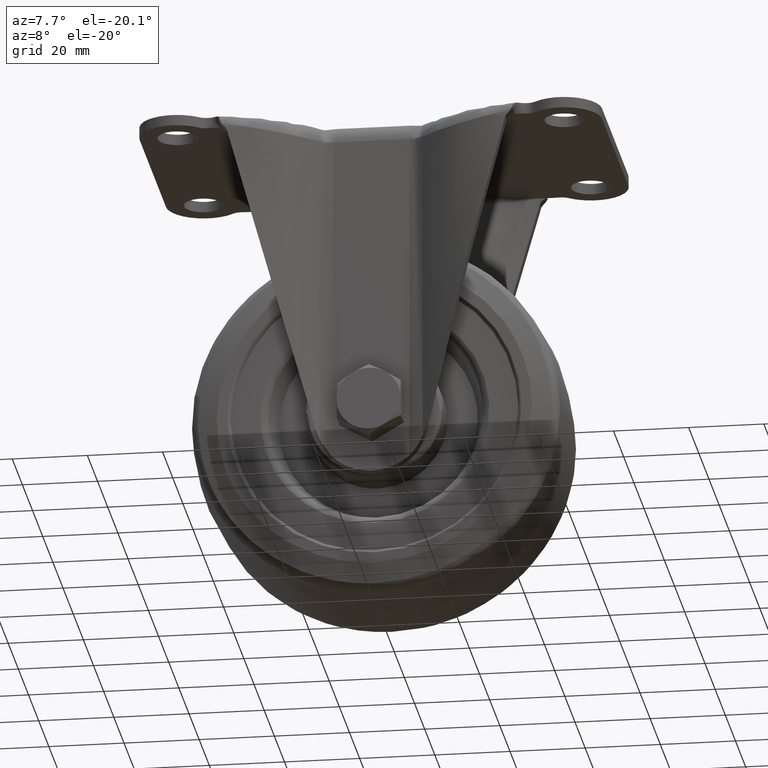
[diagram: clean part render]
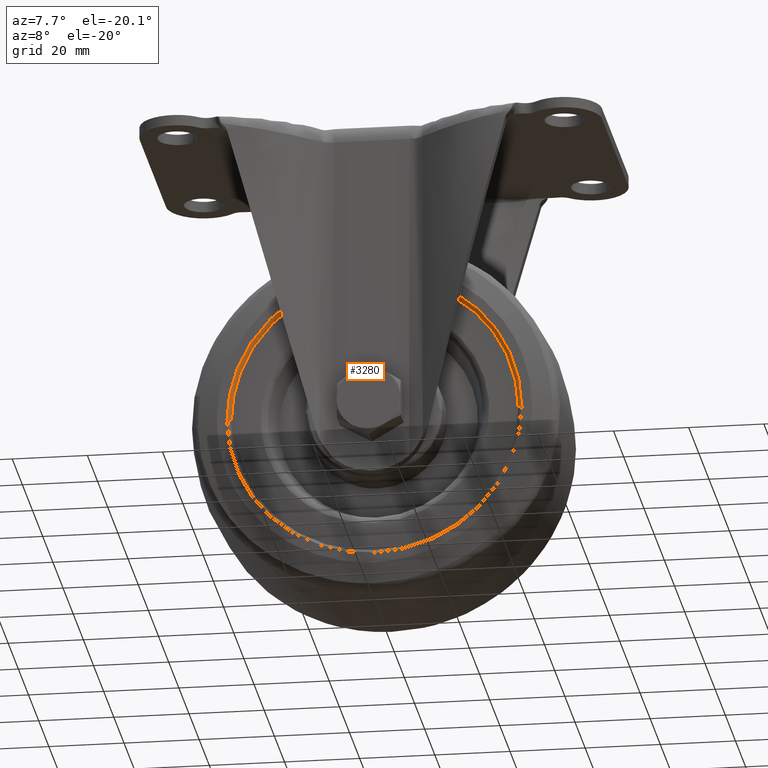
[diagram: same view with one face highlighted and labeled with its STEP entity id]
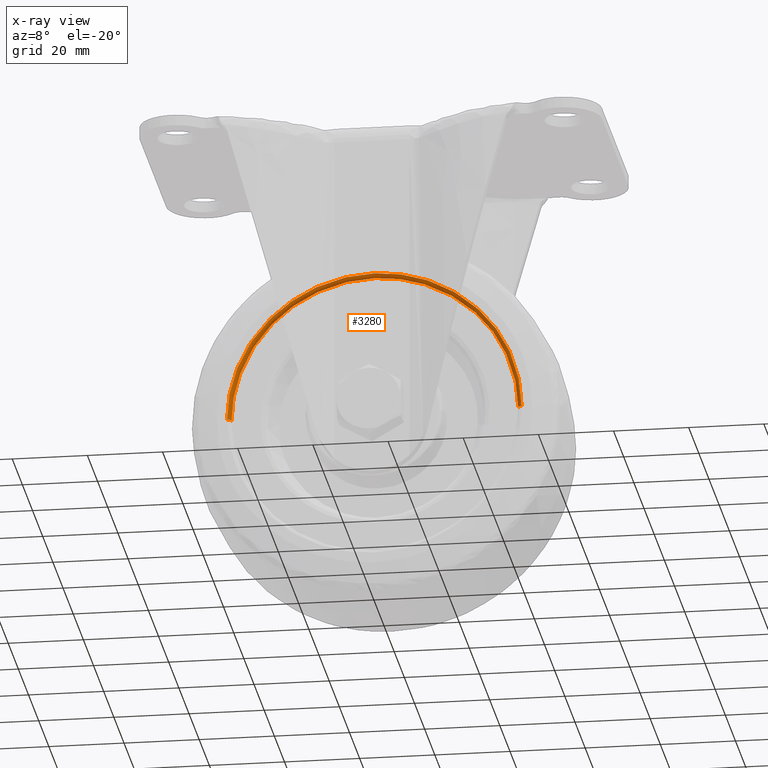
[diagram: x-ray of the same camera — body ghosted, the highlighted face saturated]
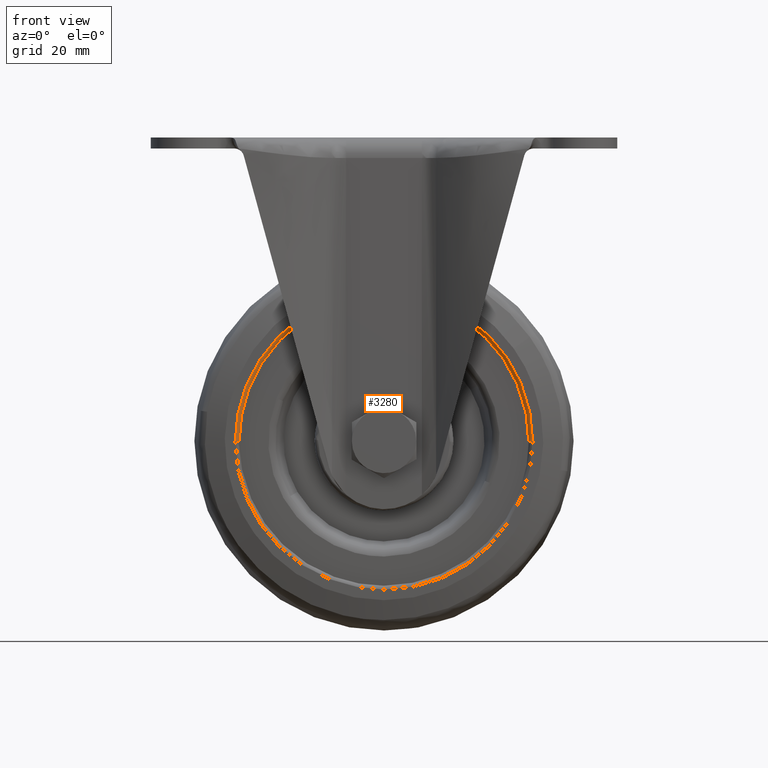
[diagram: same view with one face highlighted and labeled with its STEP entity id]
A machine part, auxiliary view. The second image highlights one B-rep face of the part: STEP entity #3280.
The next image is the same camera in x-ray: the body ghosted, the highlighted face saturated — about 0% of this face is hidden behind the body in this view.
A second angle (front view) of the same face is appended — the face is thin or edge-on in the first view.
In plain terms, the highlighted face is a freeform B-spline surface patch.
Its self-contained STEP definition (entity closure, byte-faithful):
#3126=CARTESIAN_POINT('',(0.0,-19.0,-40.825000000000003));
#3127=VERTEX_POINT('',#3126);
#3128=CARTESIAN_POINT('',(-39.174999998238967,-19.0,-80.0));
#3129=VERTEX_POINT('',#3128);
#3130=CARTESIAN_POINT('',(0.0,-19.0,-40.825000000000003));
#3131=CARTESIAN_POINT('',(-39.174999999119485,-18.999999999999996,-40.825000000000003));
#3132=CARTESIAN_POINT('',(-39.174999998238967,-19.0,-80.0));
#3140=(BOUNDED_CURVE()B_SPLINE_CURVE(2,(#3130,#3131,#3132),.UNSPECIFIED.,.F.,.U.)B_SPLINE_CURVE_WITH_KNOTS((3,3),(0.500000000000000,0.750000000000000),.UNSPECIFIED.)CURVE()GEOMETRIC_REPRESENTATION_ITEM()RATIONAL_B_SPLINE_CURVE((1.0,0.707106781186547,1.0))REPRESENTATION_ITEM(''));
#3141=EDGE_CURVE('',#3127,#3129,#3140,.T.);
#3143=CARTESIAN_POINT('',(39.174999998238967,-19.0,-80.0));
#3144=VERTEX_POINT('',#3143);
#3145=CARTESIAN_POINT('',(39.174999998238967,-19.0,-80.0));
#3146=CARTESIAN_POINT('',(39.174999999119485,-18.999999999999996,-40.825000000000003));
#3147=CARTESIAN_POINT('',(0.0,-19.0,-40.825000000000003));
#3155=(BOUNDED_CURVE()B_SPLINE_CURVE(2,(#3145,#3146,#3147),.UNSPECIFIED.,.F.,.U.)B_SPLINE_CURVE_WITH_KNOTS((3,3),(0.250000000000000,0.500000000000000),.UNSPECIFIED.)CURVE()GEOMETRIC_REPRESENTATION_ITEM()RATIONAL_B_SPLINE_CURVE((1.0,0.707106781186547,1.0))REPRESENTATION_ITEM(''));
#3156=EDGE_CURVE('',#3144,#3127,#3155,.T.);
#3189=CARTESIAN_POINT('',(39.244350631787896,-18.997592346537719,-81.097144016500238));
#3190=CARTESIAN_POINT('',(39.244350631787903,-18.997592346537719,-80.551766754286078));
#3191=CARTESIAN_POINT('',(39.244350631787903,-18.997592346537715,-40.755649368212104));
#3192=CARTESIAN_POINT('',(9.611776E-015,-18.997592346537711,-40.755649368212119));
#3193=CARTESIAN_POINT('',(-39.244350631787867,-18.997592346537715,-40.755649368212104));
#3194=CARTESIAN_POINT('',(-39.244350631787896,-18.997592346537719,-80.551766754286035));
#3195=CARTESIAN_POINT('',(-39.244350631787896,-18.997592346537719,-81.097144016500224));
#3196=CARTESIAN_POINT('',(38.097260710472241,-19.077335751784222,-81.065075124461046));
#3197=CARTESIAN_POINT('',(38.097260710472241,-19.077335751784219,-80.535638927667222));
#3198=CARTESIAN_POINT('',(38.097260710472234,-19.077335751784215,-41.902739289527766));
#3199=CARTESIAN_POINT('',(9.330830E-015,-19.077335751784222,-41.902739289527773));
#3200=CARTESIAN_POINT('',(-38.097260710472234,-19.077335751784215,-41.902739289527737));
#3201=CARTESIAN_POINT('',(-38.097260710472241,-19.077335751784219,-80.535638927667208));
#3202=CARTESIAN_POINT('',(-38.097260710472234,-19.077335751784219,-81.065075124461018));
#3203=CARTESIAN_POINT('',(38.177433695225510,-17.930275774808297,-81.067316499565749));
#3204=CARTESIAN_POINT('',(38.177433695225510,-17.930275774808301,-80.536766141823321));
#3205=CARTESIAN_POINT('',(38.177433695225503,-17.930275774808297,-41.822566304774504));
#3206=CARTESIAN_POINT('',(9.350466E-015,-17.930275774808305,-41.822566304774497));
#3207=CARTESIAN_POINT('',(-38.177433695225488,-17.930275774808297,-41.822566304774483));
#3208=CARTESIAN_POINT('',(-38.177433695225503,-17.930275774808301,-80.536766141823293));
#3209=CARTESIAN_POINT('',(-38.177433695225517,-17.930275774808297,-81.067316499565749));
#3217=(BOUNDED_SURFACE()B_SPLINE_SURFACE(2,2,((#3189,#3196,#3203),(#3190,#3197,#3204),(#3191,#3198,#3205),(#3192,#3199,#3206),(#3193,#3200,#3207),(#3194,#3201,#3208),(#3195,#3202,#3209)),.UNSPECIFIED.,.F.,.F.,.U.)B_SPLINE_SURFACE_WITH_KNOTS((3,1,2,1,3),(3,3),(0.0,1.300443382256965,66.322612495103684,131.344781607950410,132.645224990207400),(0.0,1.822727258770278),.UNSPECIFIED.)GEOMETRIC_REPRESENTATION_ITEM()RATIONAL_B_SPLINE_SURFACE(((0.920730318469245,0.602530283667150,0.915630244211509),(0.915399262344061,0.599041615275418,0.910328717669053),(0.643515399959645,0.421119527297086,0.639950864003831),(0.910068206218876,0.595552946883686,0.905027191126598),(0.643515399959645,0.421119527297086,0.639950864003831),(0.915399262344061,0.599041615275418,0.910328717669053),(0.920730318469245,0.602530283667150,0.915630244211509)))REPRESENTATION_ITEM('')SURFACE());
#3218=ORIENTED_EDGE('',*,*,#3156,.T.);
#3219=ORIENTED_EDGE('',*,*,#3141,.T.);
#3220=CARTESIAN_POINT('',(-38.174999999999990,-18.000000002590362,-80.0));
#3221=VERTEX_POINT('',#3220);
#3222=CARTESIAN_POINT('',(-39.174999998238981,-19.000000000000004,-80.0));
#3223=CARTESIAN_POINT('',(-38.175000002590345,-18.999999998238973,-80.0));
#3224=CARTESIAN_POINT('',(-38.174999999999983,-18.000000002590358,-80.0));
#3232=(BOUNDED_CURVE()B_SPLINE_CURVE(2,(#3222,#3223,#3224),.UNSPECIFIED.,.F.,.U.)B_SPLINE_CURVE_WITH_KNOTS((3,3),(-1.726807297714775,-0.285995336677233),.UNSPECIFIED.)CURVE()GEOMETRIC_REPRESENTATION_ITEM()RATIONAL_B_SPLINE_CURVE((0.882788775569365,0.622603438533728,0.878205638120550))REPRESENTATION_ITEM(''));
#3233=EDGE_CURVE('',#3129,#3221,#3232,.T.);
#3234=ORIENTED_EDGE('',*,*,#3233,.T.);
#3235=CARTESIAN_POINT('',(0.0,-18.0,-41.825000000000003));
#3236=VERTEX_POINT('',#3235);
#3237=CARTESIAN_POINT('',(0.0,-18.0,-41.825000000000003));
#3238=CARTESIAN_POINT('',(-38.174999999999990,-18.000000001295188,-41.825000000000003));
#3239=CARTESIAN_POINT('',(-38.174999999999990,-18.000000002590362,-80.0));
#3247=(BOUNDED_CURVE()B_SPLINE_CURVE(2,(#3237,#3238,#3239),.UNSPECIFIED.,.F.,.U.)B_SPLINE_CURVE_WITH_KNOTS((3,3),(0.500000000000000,0.750000000000000),.UNSPECIFIED.)CURVE()GEOMETRIC_REPRESENTATION_ITEM()RATIONAL_B_SPLINE_CURVE((1.0,0.707106781186547,1.0))REPRESENTATION_ITEM(''));
#3248=EDGE_CURVE('',#3236,#3221,#3247,.T.);
#3249=ORIENTED_EDGE('',*,*,#3248,.F.);
#3250=CARTESIAN_POINT('',(38.174999999999990,-18.000000002590362,-80.0));
#3251=VERTEX_POINT('',#3250);
#3252=CARTESIAN_POINT('',(38.174999999999990,-18.000000002590362,-80.0));
#3253=CARTESIAN_POINT('',(38.174999999999990,-18.000000001295188,-41.825000000000003));
#3254=CARTESIAN_POINT('',(0.0,-18.0,-41.825000000000003));
#3262=(BOUNDED_CURVE()B_SPLINE_CURVE(2,(#3252,#3253,#3254),.UNSPECIFIED.,.F.,.U.)B_SPLINE_CURVE_WITH_KNOTS((3,3),(0.250000000000000,0.500000000000000),.UNSPECIFIED.)CURVE()GEOMETRIC_REPRESENTATION_ITEM()RATIONAL_B_SPLINE_CURVE((1.0,0.707106781186547,1.0))REPRESENTATION_ITEM(''));
#3263=EDGE_CURVE('',#3251,#3236,#3262,.T.);
#3264=ORIENTED_EDGE('',*,*,#3263,.F.);
#3265=CARTESIAN_POINT('',(39.174999998238981,-19.000000000000004,-80.000000000000014));
#3266=CARTESIAN_POINT('',(38.175000002590345,-18.999999998238973,-80.0));
#3267=CARTESIAN_POINT('',(38.174999999999983,-18.000000002590358,-80.0));
#3275=(BOUNDED_CURVE()B_SPLINE_CURVE(2,(#3265,#3266,#3267),.UNSPECIFIED.,.F.,.U.)B_SPLINE_CURVE_WITH_KNOTS((3,3),(-1.726807297714775,-0.285995336677233),.UNSPECIFIED.)CURVE()GEOMETRIC_REPRESENTATION_ITEM()RATIONAL_B_SPLINE_CURVE((0.882788775569365,0.622603438533728,0.878205638120550))REPRESENTATION_ITEM(''));
#3276=EDGE_CURVE('',#3144,#3251,#3275,.T.);
#3277=ORIENTED_EDGE('',*,*,#3276,.F.);
#3278=EDGE_LOOP('',(#3218,#3219,#3234,#3249,#3264,#3277));
#3279=FACE_OUTER_BOUND('',#3278,.T.);
#3280=ADVANCED_FACE('',(#3279),#3217,.T.);